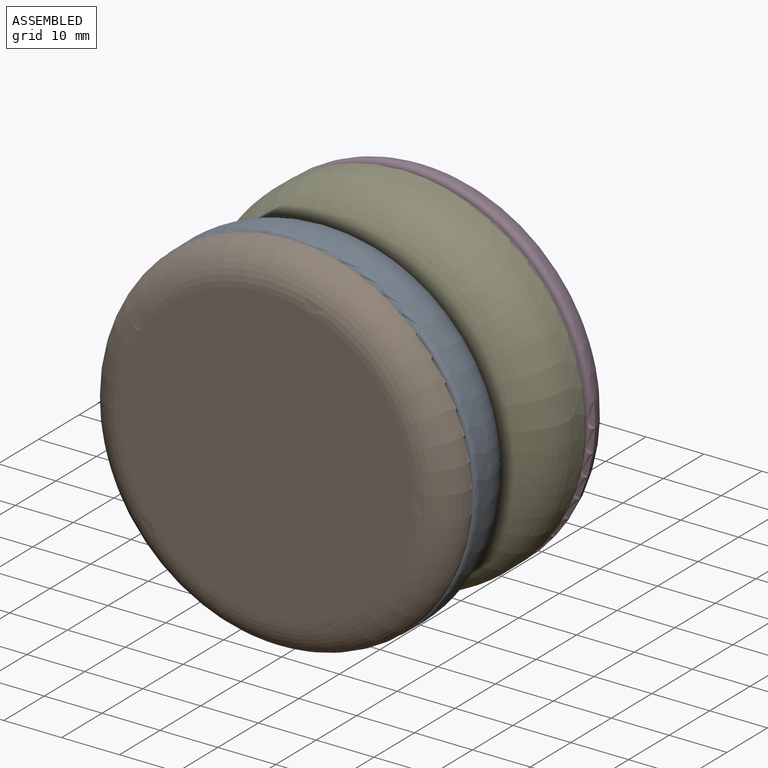
[diagram: assembled view]
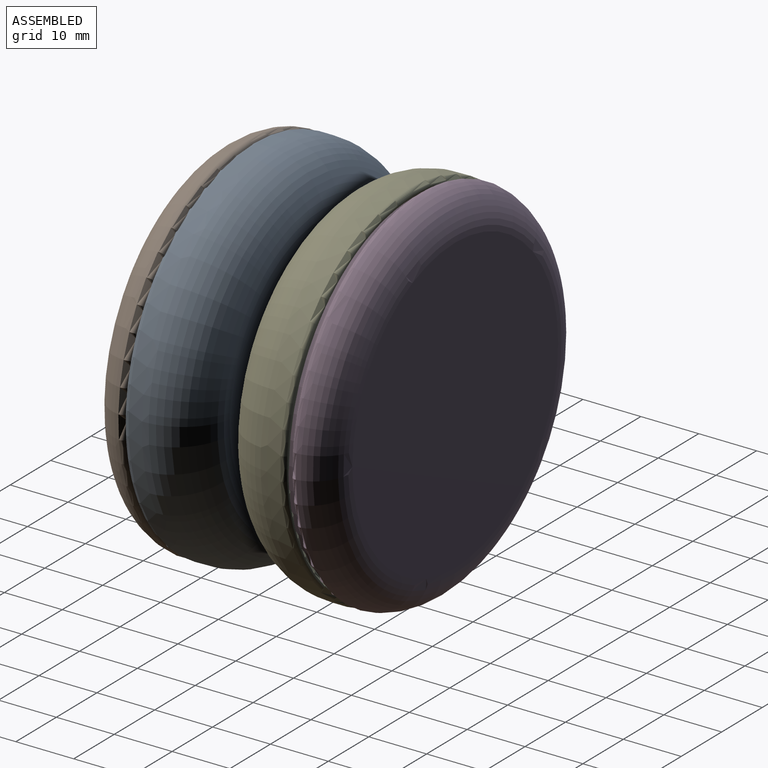
[diagram: assembled view, second angle]
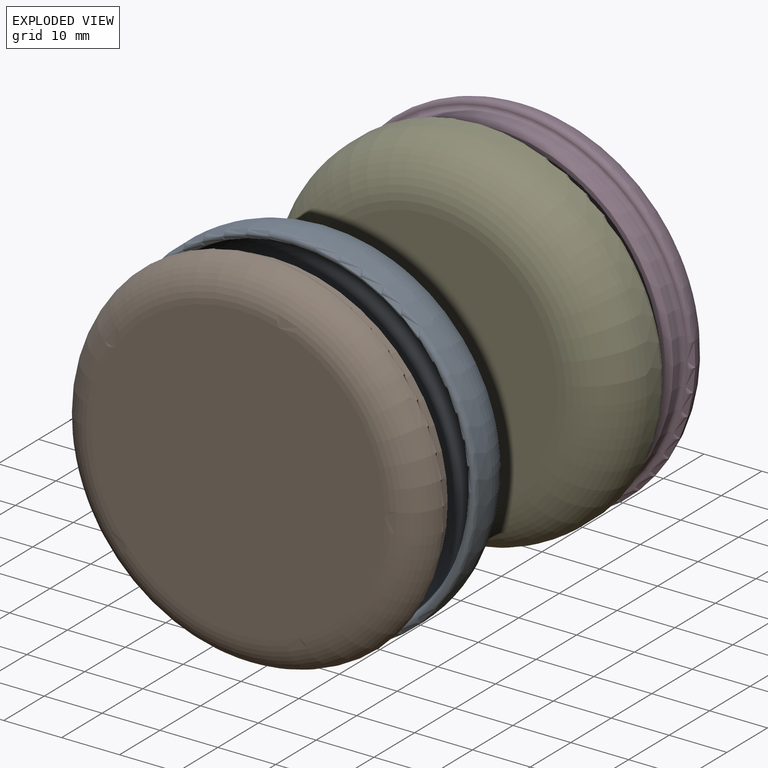
[diagram: exploded view]
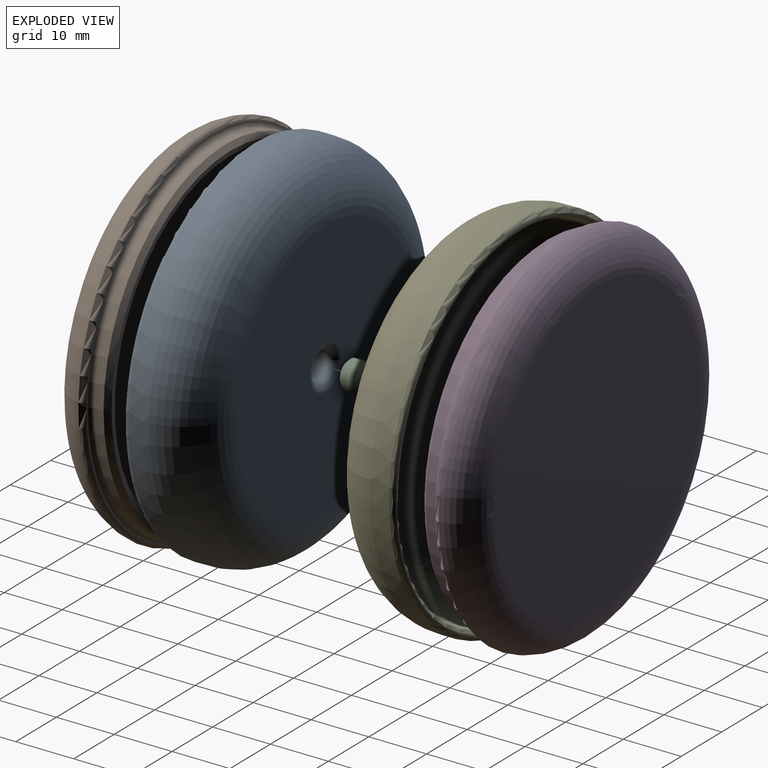
[diagram: exploded view, second angle]
ASSEMBLY  parts=5 mates=4
PART A: 15 faces, bbox 68.7x12.7x68.7 mm
  f0: torus R=22.23mm, axis (0,-1,0), area 2137mm2, adj f1,f10
  f1: plane 44.45x44.45mm, normal (0,1,0), area 1455.5mm2, adj f0,f11
  f2: cylinder r=3.95mm len=7.9mm, axis (0,-1,0), area 47.3mm2, adj f11,f12
  f3: plane 4.72x4.72mm, normal (0,1,0), area 17.5mm2, adj f12
  f4: plane 4.72x4.72mm, normal (0,-1,0), area 17.5mm2, adj f5
  f5: cylinder r=2.36mm len=4.72mm, axis (0,-1,0), area 51.8mm2, adj f4,f14
  f6: plane 44.45x44.45mm, normal (0,-1,0), area 1502.8mm2, adj f7,f14
  f7: torus R=22.23mm, axis (0,-1,0), area 2659.4mm2, adj f6,f8
  f8: cylinder r=31.75mm len=63.5mm, axis (0,-1,0), area 469.2mm2, adj f7,f13
  f9: torus R=30.99mm, axis (0,-1,0), area 248.2mm2, adj f10,f13
  f10: cylinder r=30.16mm len=60.33mm, axis (0,-1,0), area 445.3mm2, adj f0,f9
  f11: torus R=5.54mm, axis (0,1,0), area 70.9mm2, adj f1,f2
  f12: torus R=2.36mm, axis (0,1,0), area 52.8mm2, adj f2,f3
  f13: torus R=30.92mm, axis (0,1,0), area 243.9mm2, adj f8,f9
  f14: torus R=3.95mm, axis (0,1,0), area 46mm2, adj f5,f6
PART B: 11 faces, bbox 68.7x9.7x68.7 mm
  f0: cylinder r=30.16mm len=60.33mm, axis (0,-1,0), area 291.2mm2, adj f1,f10
  f1: torus R=30.99mm, axis (0,-1,0), area 248.2mm2, adj f0,f2
  f2: plane 61.98x61.98mm, normal (0,1,0), area 24.4mm2, adj f1,f3
  f3: torus R=30.86mm, axis (0,-1,0), area 280.4mm2, adj f2,f4
  f4: torus R=25.4mm, axis (0,-1,0), area 1655.4mm2, adj f3,f5
  f5: plane 50.8x50.8mm, normal (0,1,0), area 2026.8mm2, adj f4
  f6: plane 47.63x47.63mm, normal (0,-1,0), area 1781.4mm2, adj f7
  f7: torus R=23.81mm, axis (0,-1,0), area 1261.8mm2, adj f6,f8
  f8: cylinder r=28.57mm len=57.15mm, axis (0,-1,0), area 570mm2, adj f7,f9
  f9: plane 58.7x58.7mm, normal (0,-1,0), area 141mm2, adj f8,f10
  f10: cone r=29.35mm half-angle=45deg, axis (0,1,0), area 214.9mm2, adj f0,f9
PART C: 5 faces, bbox 12.7x4.8x4.8 mm
  f0: cylinder r=2.38mm len=11.75mm, axis (1,0,0), area 175.8mm2, adj f3,f4
  f1: plane 3.81x3.81mm, normal (-1,0,0), area 11.4mm2, adj f4
  f2: plane 3.81x3.81mm, normal (1,0,0), area 11.4mm2, adj f3
  f3: cone r=1.91mm half-angle=45deg, axis (-1,0,0), area 9.1mm2, adj f0,f2
  f4: cone r=2.38mm half-angle=45deg, axis (1,0,0), area 9.1mm2, adj f0,f1
PART D: same geometry as B
PART E: same geometry as A
PLACE A rot(axis=(1,0,0),180deg) t=(-29.68,-25.25,1.17)mm
PLACE B rot(axis=(1,0,0),180deg) t=(-29.68,-25.25,1.17)mm
PLACE C rot(axis=(-0.58,-0.58,0.58),120deg) t=(-29.68,-23.98,1.17)mm
PLACE D t=(-29.68,-21.88,1.17)mm
PLACE E t=(-29.68,-22.71,1.17)mm fixed
MATE fastened C.f0 <-> E.f0  axis (0,1,0) through (-29.68,-17.63,1.17)mm
MATE fastened B.f0 <-> A.f0  axis (0,-1,0) through (-29.68,-37.95,1.17)mm
MATE fastened D.f0 <-> E.f0  axis (0,-1,0) through (-29.68,-10.01,1.17)mm
MATE fastened A.f0 <-> C.f0  axis (0,1,0) through (-29.68,-30.33,1.17)mm
